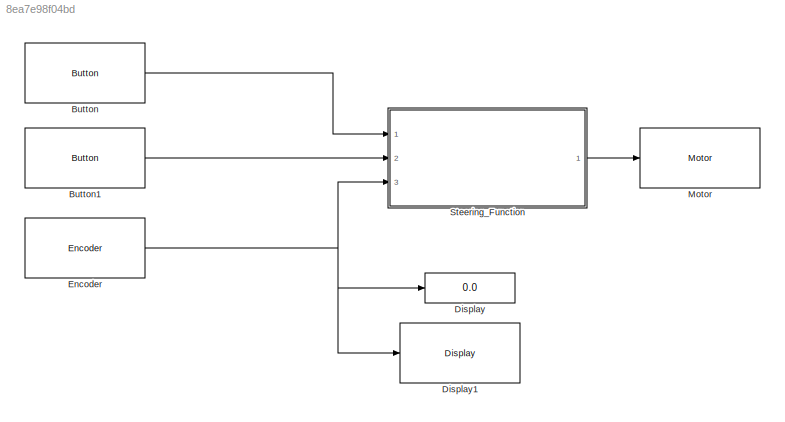
MODEL slx_8ea7e98f04bd
KIND model
CONFIG AbsTol = auto
CONFIG FixedStep = auto
CONFIG MaxStep = auto
CONFIG MinStep = auto
CONFIG RelTol = 1e-3
CONFIG SampleTimeConstraint = Unconstrained
CONFIG Solver = FixedStepAuto
CONFIG SolverMode = Auto
CONFIG SolverName = FixedStepAuto
CONFIG StartTime = 0.0
CONFIG StopTime = inf
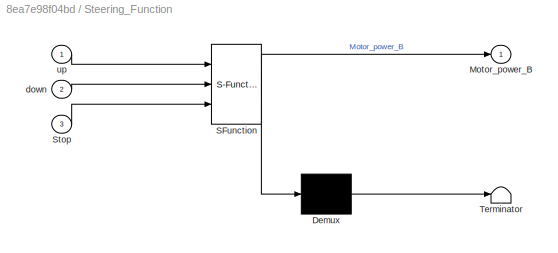
BLOCK [SubSystem]  Steering_Function
  ErrorFcn = Stateflow.Translate.translate
  PermitHierarchicalResolution = ExplicitOnly
  Ports = [3, 1]
  RequestExecContextInheritance = off
  SFBlockType = MATLAB Function
  TreatAsAtomicUnit = on
  Variant = off
BLOCK [Demux]  Steering_Function/ Demux 
  Outputs = 1
  Ports = [1, 1]
BLOCK [S-Function]  Steering_Function/ SFunction 
  EnableBusSupport = on
  FunctionName = sf_sfun
  PortCounts = [3 2]
  Ports = [3, 2]
  SFunctionDeploymentMode = off
  Tag = Stateflow S-Function testbench_fwd_steering 2
BLOCK [Terminator]  Steering_Function/ Terminator 
BLOCK [Outport]  Steering_Function/Motor_power_B
  IconDisplay = Port number
BLOCK [Inport]  Steering_Function/Stop
  IconDisplay = Port number
  Port = 3
BLOCK [Inport]  Steering_Function/down
  IconDisplay = Port number
  Port = 2
BLOCK [Inport]  Steering_Function/up
  IconDisplay = Port number
BLOCK [Reference] Button  REF=legoev3lib/Button
  Ports = [0, 1]
  SourceBlock = legoev3lib/Button
  SourceType = LEGO MINDSTORMS EV3 Button
BLOCK [Reference] Button1  REF=legoev3lib/Button
  Ports = [0, 1]
  SourceBlock = legoev3lib/Button
  SourceType = LEGO MINDSTORMS EV3 Button
BLOCK [Display] Display
  Decimation = 1
  Format = decimal (Stored Integer)
  Ports = [1]
BLOCK [Reference] Display1  REF=legoev3lib/Display
  Ports = [1]
  SourceBlock = legoev3lib/Display
  SourceType = LEGO MINDSTORMS EV3 Display
BLOCK [Reference] Encoder  REF=legoev3lib/Encoder
  Ports = [0, 1]
  SourceBlock = legoev3lib/Encoder
  SourceType = LEGO MINDSTORMS EV3 Encoder
BLOCK [Reference] Motor  REF=legoev3lib/Motor
  Ports = [1]
  SourceBlock = legoev3lib/Motor
  SourceType = LEGO MINDSTORMS EV3 Motor
LINE  Steering_Function:1 -> Motor:1
LINE Button1:1 ->  Steering_Function:2
LINE Button:1 ->  Steering_Function:1
NET Encoder:1 ->  Steering_Function:3, Display1:1, Display:1
note: NET lines group one-source signal fan-out (src -> all destinations, sorted); 1:1 wires keep LINE
CHART  Steering_Function states=1 transitions=1
  STATE_LABEL 'eML_blk_kernel()'
  STATE_LABEL 'SCRIPT:\nfunction Motor_power_B=fcn(up,down,Stop)\n%#codegen\nif(up==1)&&(Stop<=225)\n    Motor_power_B=70;\nelseif(down==1)&&(Stop>=-225)\n    Motor_power_B=-70;\nelse\n   Motor_power_B=0;\nend\nend\n\n \n    '
